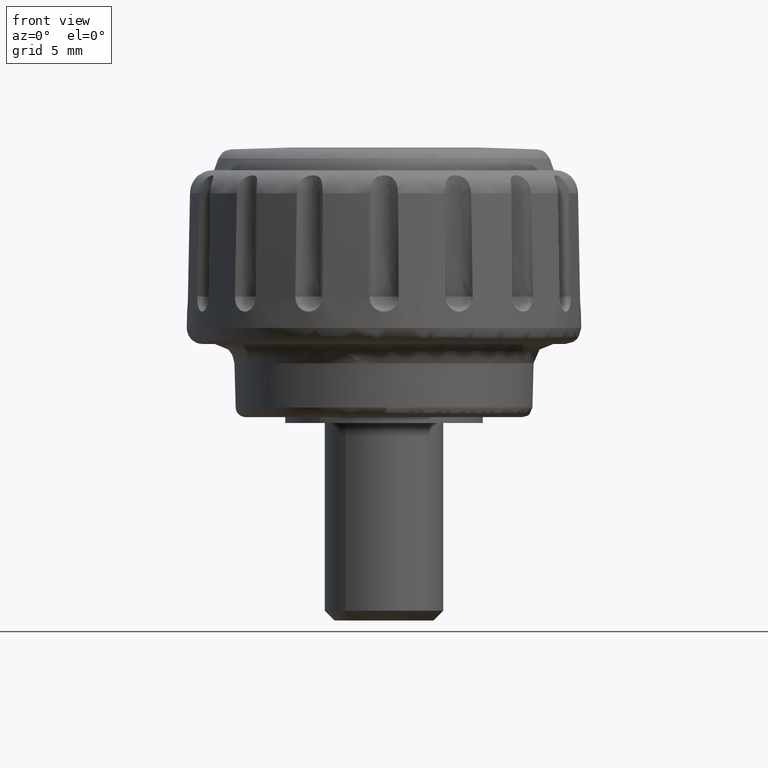
[diagram: clean part render]
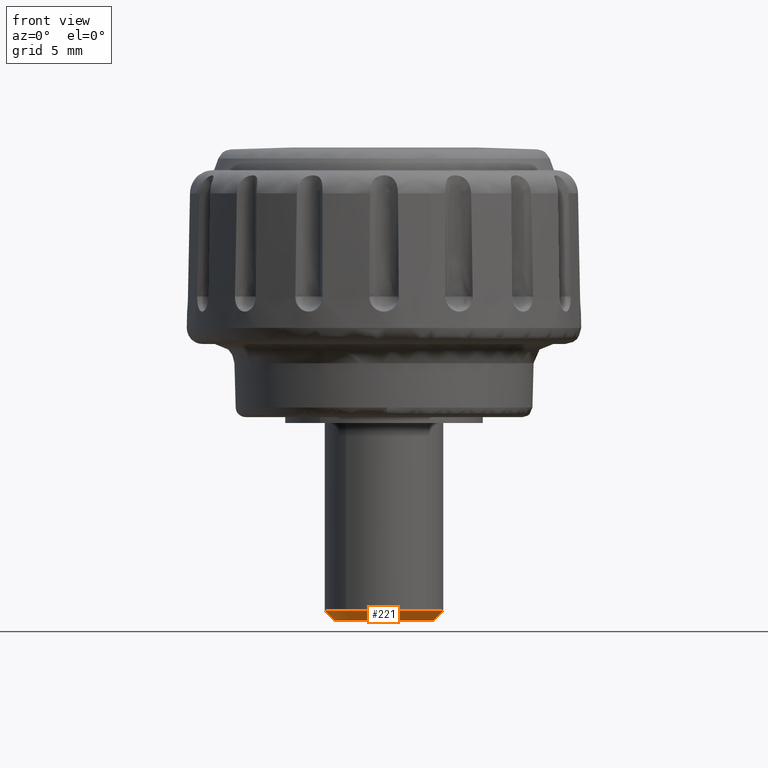
[diagram: same view with one face highlighted and labeled with its STEP entity id]
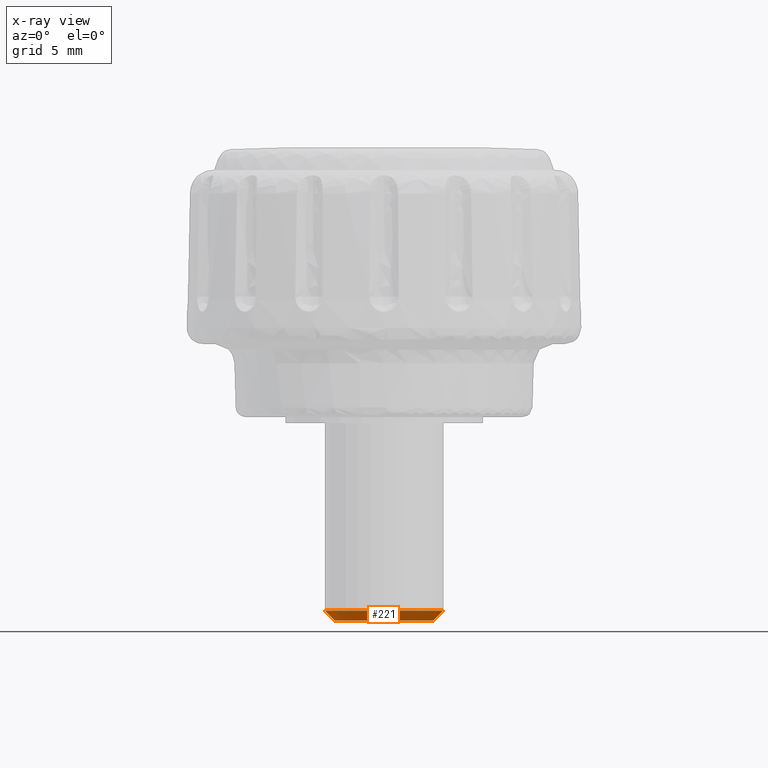
[diagram: x-ray of the same camera — body ghosted, the highlighted face saturated]
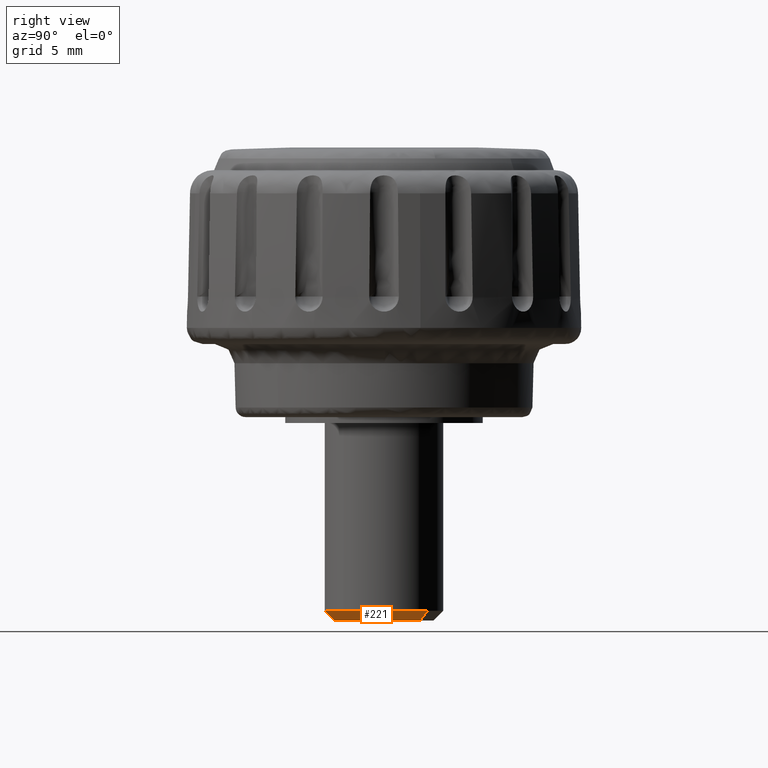
[diagram: same view with one face highlighted and labeled with its STEP entity id]
A machine part, front view. The second image highlights one B-rep face of the part: STEP entity #221.
The next image is the same camera in x-ray: the body ghosted, the highlighted face saturated — about 0% of this face is hidden behind the body in this view.
A second angle (right view) of the same face is appended — the face is thin or edge-on in the first view.
In plain terms, the highlighted face is a freeform B-spline surface patch.
Its self-contained STEP definition (entity closure, byte-faithful):
#44=CARTESIAN_POINT('',(-1.734862081070967,1.782669293408529,-10.012400425000001));
#45=CARTESIAN_POINT('',(-1.785881310361789,1.733018285995440,-10.012400424999999));
#46=CARTESIAN_POINT('',(-1.833977375315117,1.680530641443893,-10.012400424999999));
#47=CARTESIAN_POINT('',(-3.514508016759009,-0.153446733871223,-10.012400424999999));
#48=CARTESIAN_POINT('',(-1.680530641443893,-1.833977375315117,-10.012400424999999));
#49=CARTESIAN_POINT('',(0.153446733871223,-3.514508016759009,-10.012400424999999));
#50=CARTESIAN_POINT('',(1.833977375315117,-1.680530641443893,-10.012400424999999));
#51=CARTESIAN_POINT('',(3.514508016759009,0.153446733871223,-10.012400424999999));
#52=CARTESIAN_POINT('',(1.680530641443893,1.833977375315117,-10.012400424999999));
#53=CARTESIAN_POINT('',(-2.101231824573594,2.159135007255312,-9.491272564375002));
#54=CARTESIAN_POINT('',(-2.163025340854101,2.098998655186264,-9.491272564375000));
#55=CARTESIAN_POINT('',(-2.221278376308253,2.035426622382058,-9.491272564375000));
#56=CARTESIAN_POINT('',(-4.256704998690311,-0.185851753926196,-9.491272564375000));
#57=CARTESIAN_POINT('',(-2.035426622382058,-2.221278376308253,-9.491272564375000));
#58=CARTESIAN_POINT('',(0.185851753926196,-4.256704998690311,-9.491272564375000));
#59=CARTESIAN_POINT('',(2.221278376308253,-2.035426622382058,-9.491272564375000));
#60=CARTESIAN_POINT('',(4.256704998690311,0.185851753926196,-9.491272564375000));
#61=CARTESIAN_POINT('',(2.035426622382058,2.221278376308253,-9.491272564375000));
#69=(BOUNDED_SURFACE()B_SPLINE_SURFACE(2,1,((#44,#53),(#45,#54),(#46,#55),(#47,#56),(#48,#57),(#49,#58),(#50,#59),(#51,#60),(#52,#61)),.UNSPECIFIED.,.F.,.F.,.U.)B_SPLINE_SURFACE_WITH_KNOTS((3,2,2,2,3),(2,2),(0.0,0.199671647741951,5.191462841290716,10.183254034839480,15.175045228388250),(0.0,1.0),.UNSPECIFIED.)GEOMETRIC_REPRESENTATION_ITEM()RATIONAL_B_SPLINE_SURFACE(((0.977505800795127,0.977505800795127),(0.988284271247462,0.988284271247462),(1.0,1.0),(0.707106781186548,0.707106781186548),(1.0,1.0),(0.707106781186548,0.707106781186548),(1.0,1.0),(0.707106781186548,0.707106781186548),(1.0,1.0)))REPRESENTATION_ITEM('')SURFACE());
#70=CARTESIAN_POINT('',(-2.500000000000000,0.0,-10.0));
#71=VERTEX_POINT('',#70);
#72=CARTESIAN_POINT('',(-1.743579886907180,1.791627333900501,-10.000000044838551));
#73=VERTEX_POINT('',#72);
#74=CARTESIAN_POINT('',(-2.500000000000000,0.0,-10.0));
#75=CARTESIAN_POINT('',(-2.500064715277807,0.218481900903383,-10.000000005467889));
#76=CARTESIAN_POINT('',(-2.457447212120349,0.540951198438833,-10.000000013538230));
#77=CARTESIAN_POINT('',(-2.307829428033647,0.985527044604967,-10.000000024664500));
#78=CARTESIAN_POINT('',(-2.102717955810481,1.385007781431231,-10.000000034662220));
#79=CARTESIAN_POINT('',(-1.885266781781770,1.653794225602677,-10.000000041389031));
#80=CARTESIAN_POINT('',(-1.743579886907180,1.791627333900501,-10.000000044838551));
#81=B_SPLINE_CURVE_WITH_KNOTS('',3,(#74,#75,#76,#77,#78,#79,#80),.UNSPECIFIED.,.F.,.U.,(4,1,1,1,4),(1.158857E-009,0.655424544854151,0.967531445800281,1.404480936941090,1.997484048623556),.UNSPECIFIED.);
#82=EDGE_CURVE('',#71,#73,#81,.T.);
#83=ORIENTED_EDGE('',*,*,#82,.F.);
#84=CARTESIAN_POINT('',(-0.000000358852546,-2.499999999999974,-10.0));
#85=VERTEX_POINT('',#84);
#86=CARTESIAN_POINT('',(-0.000000358852546,-2.499999999999974,-10.0));
#87=CARTESIAN_POINT('',(-0.184079576759350,-2.500034573271802,-9.999999999999991));
#88=CARTESIAN_POINT('',(-0.490860661293966,-2.465956126418077,-10.000000000000050));
#89=CARTESIAN_POINT('',(-0.873555386298243,-2.349854728405056,-9.999999999999941));
#90=CARTESIAN_POINT('',(-1.181706425385283,-2.210992054741641,-10.000000000000091));
#91=CARTESIAN_POINT('',(-1.495996747576907,-2.017350353819433,-9.999999999999954));
#92=CARTESIAN_POINT('',(-1.813135230969692,-1.740368834180904,-9.999999999999996));
#93=CARTESIAN_POINT('',(-2.108179287991800,-1.371742857728530,-10.000000000000011));
#94=CARTESIAN_POINT('',(-2.323788045631896,-0.962345679087427,-9.999999999999975));
#95=CARTESIAN_POINT('',(-2.466794720422065,-0.490864855442827,-10.000000000000041));
#96=CARTESIAN_POINT('',(-2.500025733421518,-0.173852144801687,-9.999999999999982));
#97=CARTESIAN_POINT('',(-2.500000000000000,0.0,-10.0));
#98=B_SPLINE_CURVE_WITH_KNOTS('',3,(#86,#87,#88,#89,#90,#91,#92,#93,#94,#95,#96,#97),.UNSPECIFIED.,.F.,.U.,(4,1,1,1,1,1,1,1,1,4),(3.949364E-009,0.552232217407616,0.920394278934132,1.196514618970967,1.564674498495858,2.024866846949096,2.454380177316222,2.975941688587703,3.405459407753487,3.927015254931301),.UNSPECIFIED.);
#99=EDGE_CURVE('',#85,#71,#98,.T.);
#100=ORIENTED_EDGE('',*,*,#99,.F.);
#101=CARTESIAN_POINT('',(2.500000000000000,0.0,-10.0));
#102=VERTEX_POINT('',#101);
#103=CARTESIAN_POINT('',(2.500000000000000,0.0,-10.0));
#104=CARTESIAN_POINT('',(2.500028717975883,-0.184078571845128,-9.999999999999996));
#105=CARTESIAN_POINT('',(2.461423299452731,-0.531765589552704,-10.000000000000011));
#106=CARTESIAN_POINT('',(2.290606391144495,-1.048916980510207,-10.0));
#107=CARTESIAN_POINT('',(2.039138291990301,-1.474373858457656,-9.999999999999982));
#108=CARTESIAN_POINT('',(1.765384840503053,-1.780088453577110,-10.000000000000030));
#109=CARTESIAN_POINT('',(1.501792136838303,-2.007478046385079,-9.999999999999913));
#110=CARTESIAN_POINT('',(1.236279400095498,-2.182540764797038,-10.000000000000171));
#111=CARTESIAN_POINT('',(0.893579805767067,-2.344628004806720,-9.999999999999835));
#112=CARTESIAN_POINT('',(0.490863893905952,-2.466794684799713,-10.000000000000080));
#113=CARTESIAN_POINT('',(0.173852975206010,-2.500027926315253,-10.000000000000130));
#114=CARTESIAN_POINT('',(-0.000000358852546,-2.499999999999974,-10.0));
#115=B_SPLINE_CURVE_WITH_KNOTS('',3,(#103,#104,#105,#106,#107,#108,#109,#110,#111,#112,#113,#114),.UNSPECIFIED.,.F.,.U.,(4,1,1,1,1,1,1,1,1,4),(3.822942E-009,0.552232274187118,1.043113960163610,1.626033844749841,2.024867055068885,2.270302324001215,2.669141038450094,2.975941995129233,3.405459758660341,3.927015659444306),.UNSPECIFIED.);
#116=EDGE_CURVE('',#102,#85,#115,.T.);
#117=ORIENTED_EDGE('',*,*,#116,.F.);
#118=CARTESIAN_POINT('',(1.688975609848630,1.843193441126434,-9.999999955315525));
#119=VERTEX_POINT('',#118);
#120=CARTESIAN_POINT('',(1.688975609848630,1.843193441126434,-9.999999955315525));
#121=CARTESIAN_POINT('',(1.852190269568495,1.693743088509449,-9.999999958938656));
#122=CARTESIAN_POINT('',(2.061613353106089,1.443008653247567,-9.999999965017182));
#123=CARTESIAN_POINT('',(2.287963241717334,1.030575804502130,-9.999999975015783));
#124=CARTESIAN_POINT('',(2.450931341972406,0.588277228124935,-9.999999985738416));
#125=CARTESIAN_POINT('',(2.500077020861047,0.221299677732182,-9.999999994635052));
#126=CARTESIAN_POINT('',(2.500000000000000,0.0,-10.0));
#127=B_SPLINE_CURVE_WITH_KNOTS('',3,(#120,#121,#122,#123,#124,#125,#126),.UNSPECIFIED.,.F.,.U.,(4,1,1,1,4),(4.458973E-009,0.663874651964162,0.971524100714114,1.408707517510110,2.072582165015819),.UNSPECIFIED.);
#128=EDGE_CURVE('',#119,#102,#127,.T.);
#129=ORIENTED_EDGE('',*,*,#128,.F.);
#130=CARTESIAN_POINT('',(2.026770704727430,2.211832099787242,-9.503982959709228));
#131=VERTEX_POINT('',#130);
#132=CARTESIAN_POINT('',(1.688975609848630,1.843193441126434,-9.999999955315525));
#133=CARTESIAN_POINT('',(2.026770704727430,2.211832099787242,-9.503982959709228));
#134=QUASI_UNIFORM_CURVE('',1,(#132,#133),.UNSPECIFIED.,.F.,.U.);
#135=EDGE_CURVE('',#119,#131,#134,.T.);
#136=ORIENTED_EDGE('',*,*,#135,.T.);
#137=CARTESIAN_POINT('',(3.0,0.0,-9.503983000000000));
#138=VERTEX_POINT('',#137);
#139=CARTESIAN_POINT('',(2.026770704727430,2.211832099787242,-9.503982959709228));
#140=CARTESIAN_POINT('',(2.165266473807760,2.084952294704629,-9.503982962020473));
#141=CARTESIAN_POINT('',(2.413936845195948,1.809884242826981,-9.503982967031110));
#142=CARTESIAN_POINT('',(2.675908241025121,1.383109840763141,-9.503982974805268));
#143=CARTESIAN_POINT('',(2.850763401160428,0.963774151494884,-9.503982982443874));
#144=CARTESIAN_POINT('',(2.968872019961694,0.518138497859550,-9.503982990561575));
#145=CARTESIAN_POINT('',(3.000022536183211,0.187828937246020,-9.503982996578566));
#146=CARTESIAN_POINT('',(3.0,0.0,-9.503983000000000));
#147=B_SPLINE_CURVE_WITH_KNOTS('',3,(#139,#140,#141,#142,#143,#144,#145,#146),.UNSPECIFIED.,.F.,.U.,(4,1,1,1,1,4),(4.447066E-009,0.563482881577941,1.107536768555267,1.496142522837400,1.923615704269092,2.487098581397036),.UNSPECIFIED.);
#148=EDGE_CURVE('',#131,#138,#147,.T.);
#149=ORIENTED_EDGE('',*,*,#148,.T.);
#150=CARTESIAN_POINT('',(2.176123048433030,-2.065063677805594,-9.503982999999952));
#151=VERTEX_POINT('',#150);
#152=CARTESIAN_POINT('',(3.0,0.0,-9.503983000000000));
#153=CARTESIAN_POINT('',(3.000036265043160,-0.207602940019180,-9.503982999999996));
#154=CARTESIAN_POINT('',(2.969083105254621,-0.504156056295727,-9.503982999999977));
#155=CARTESIAN_POINT('',(2.853579478061450,-0.952630495778143,-9.503983000000011));
#156=CARTESIAN_POINT('',(2.712426304452092,-1.306429429666059,-9.503982999999940));
#157=CARTESIAN_POINT('',(2.480114933818109,-1.707562868060090,-9.503983000000018));
#158=CARTESIAN_POINT('',(2.294537764497098,-1.940300765247195,-9.503982999999906));
#159=CARTESIAN_POINT('',(2.176123048433030,-2.065063677805594,-9.503982999999952));
#160=B_SPLINE_CURVE_WITH_KNOTS('',3,(#152,#153,#154,#155,#156,#157,#158,#159),.UNSPECIFIED.,.F.,.U.,(4,1,1,1,1,4),(3.452136E-009,0.622797197223965,0.889712048846822,1.387945945275860,1.761626190831661,2.277657990667467),.UNSPECIFIED.);
#161=EDGE_CURVE('',#138,#151,#160,.T.);
#162=ORIENTED_EDGE('',*,*,#161,.T.);
#163=CARTESIAN_POINT('',(-0.000000323567816,-2.999999999999983,-9.503983000000000));
#164=VERTEX_POINT('',#163);
#165=CARTESIAN_POINT('',(2.176123048433030,-2.065063677805594,-9.503982999999952));
#166=CARTESIAN_POINT('',(2.049566773566300,-2.198455745175703,-9.503982999999950));
#167=CARTESIAN_POINT('',(1.795757093713283,-2.420858107366483,-9.503982999999963));
#168=CARTESIAN_POINT('',(1.378751856577573,-2.677460217874526,-9.503982999999970));
#169=CARTESIAN_POINT('',(0.962816188758533,-2.853043914895601,-9.503982999999961));
#170=CARTESIAN_POINT('',(0.500891622088123,-2.971210751159634,-9.503983000000014));
#171=CARTESIAN_POINT('',(0.177532922613867,-3.000016396502550,-9.503982999999996));
#172=CARTESIAN_POINT('',(-0.000000323567816,-2.999999999999983,-9.503983000000000));
#173=B_SPLINE_CURVE_WITH_KNOTS('',3,(#165,#166,#167,#168,#169,#170,#171,#172),.UNSPECIFIED.,.F.,.U.,(4,1,1,1,1,4),(4.256405E-009,0.551620221271348,1.008134469129245,1.464646107725361,1.902140116406589,2.434738666851212),.UNSPECIFIED.);
#174=EDGE_CURVE('',#151,#164,#173,.T.);
#175=ORIENTED_EDGE('',*,*,#174,.T.);
#176=CARTESIAN_POINT('',(-1.937226157680744,-2.290666997320322,-9.503983000000124));
#177=VERTEX_POINT('',#176);
#178=CARTESIAN_POINT('',(-0.000000323567816,-2.999999999999983,-9.503983000000000));
#179=CARTESIAN_POINT('',(-0.197438495961746,-3.000025101173951,-9.503983000000051));
#180=CARTESIAN_POINT('',(-0.526486834076047,-2.967391417941990,-9.503983000000014));
#181=CARTESIAN_POINT('',(-1.035954972868218,-2.830102445258754,-9.503983000000064));
#182=CARTESIAN_POINT('',(-1.497285668940638,-2.619768675613441,-9.503983000000135));
#183=CARTESIAN_POINT('',(-1.803230064799762,-2.404001533392028,-9.503983000000099));
#184=CARTESIAN_POINT('',(-1.937226157680744,-2.290666997320322,-9.503983000000124));
#185=B_SPLINE_CURVE_WITH_KNOTS('',3,(#178,#179,#180,#181,#182,#183,#184),.UNSPECIFIED.,.F.,.U.,(4,1,1,1,4),(1.154193E-009,0.592311451705783,0.987185499724930,1.579495771958583,2.105994361483430),.UNSPECIFIED.);
#186=EDGE_CURVE('',#164,#177,#185,.T.);
#187=ORIENTED_EDGE('',*,*,#186,.T.);
#188=CARTESIAN_POINT('',(-3.0,0.0,-9.503983000000000));
#189=VERTEX_POINT('',#188);
#190=CARTESIAN_POINT('',(-1.937226157680744,-2.290666997320322,-9.503983000000124));
#191=CARTESIAN_POINT('',(-2.077163229383662,-2.172334876040241,-9.503983000000142));
#192=CARTESIAN_POINT('',(-2.363966407790554,-1.880783925773549,-9.503983000000051));
#193=CARTESIAN_POINT('',(-2.638228348831499,-1.456243216122592,-9.503983000000170));
#194=CARTESIAN_POINT('',(-2.813146936698542,-1.058074120815255,-9.503982999999995));
#195=CARTESIAN_POINT('',(-2.953697368642451,-0.617635574056544,-9.503983000000154));
#196=CARTESIAN_POINT('',(-3.000073008729592,-0.251146732347181,-9.503982999999955));
#197=CARTESIAN_POINT('',(-3.0,0.0,-9.503983000000000));
#198=B_SPLINE_CURVE_WITH_KNOTS('',3,(#190,#191,#192,#193,#194,#195,#196,#197),.UNSPECIFIED.,.F.,.U.,(4,1,1,1,1,4),(4.951211E-009,0.549789520470351,1.221759040957704,1.506830215897550,1.852994425546073,2.606409917929356),.UNSPECIFIED.);
#199=EDGE_CURVE('',#177,#189,#198,.T.);
#200=ORIENTED_EDGE('',*,*,#199,.T.);
#201=CARTESIAN_POINT('',(-2.092295892351871,2.149952829517147,-9.503983040429738));
#202=VERTEX_POINT('',#201);
#203=CARTESIAN_POINT('',(-3.0,0.0,-9.503983000000000));
#204=CARTESIAN_POINT('',(-3.000003637356503,0.137325953862313,-9.503983002582395));
#205=CARTESIAN_POINT('',(-2.979827213880216,0.430705673465794,-9.503983008099404));
#206=CARTESIAN_POINT('',(-2.896872694548869,0.809926377177596,-9.503983015230649));
#207=CARTESIAN_POINT('',(-2.763420885900806,1.186936181070241,-9.503983022320265));
#208=CARTESIAN_POINT('',(-2.537492661514606,1.640855206041548,-9.503983030856087));
#209=CARTESIAN_POINT('',(-2.280235609305437,1.967154680199719,-9.503983036992294));
#210=CARTESIAN_POINT('',(-2.092295892351871,2.149952829517147,-9.503983040429738));
#211=B_SPLINE_CURVE_WITH_KNOTS('',3,(#203,#204,#205,#206,#207,#208,#209,#210),.UNSPECIFIED.,.F.,.U.,(4,1,1,1,1,4),(3.937011E-009,0.411978815631985,0.880139100201615,1.161033574046817,1.610463414129466,2.396969200931250),.UNSPECIFIED.);
#212=EDGE_CURVE('',#189,#202,#211,.T.);
#213=ORIENTED_EDGE('',*,*,#212,.T.);
#214=CARTESIAN_POINT('',(-1.743579886907180,1.791627333900501,-10.000000044838551));
#215=CARTESIAN_POINT('',(-2.092295892351871,2.149952829517147,-9.503983040429738));
#216=QUASI_UNIFORM_CURVE('',1,(#214,#215),.UNSPECIFIED.,.F.,.U.);
#217=EDGE_CURVE('',#73,#202,#216,.T.);
#218=ORIENTED_EDGE('',*,*,#217,.F.);
#219=EDGE_LOOP('',(#83,#100,#117,#129,#136,#149,#162,#175,#187,#200,#213,#218));
#220=FACE_OUTER_BOUND('',#219,.T.);
#221=ADVANCED_FACE('',(#220),#69,.T.);